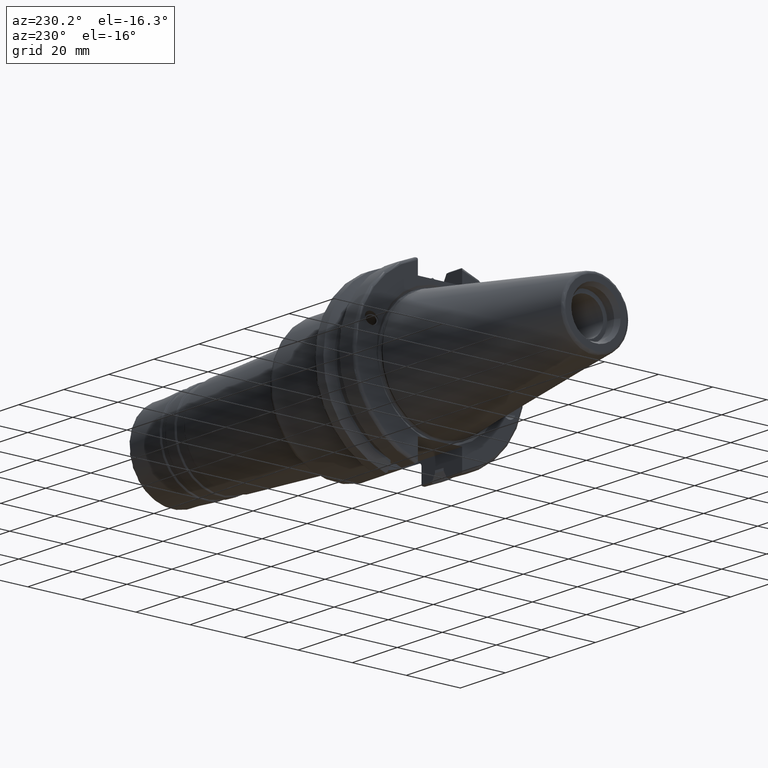
[diagram: clean part render]
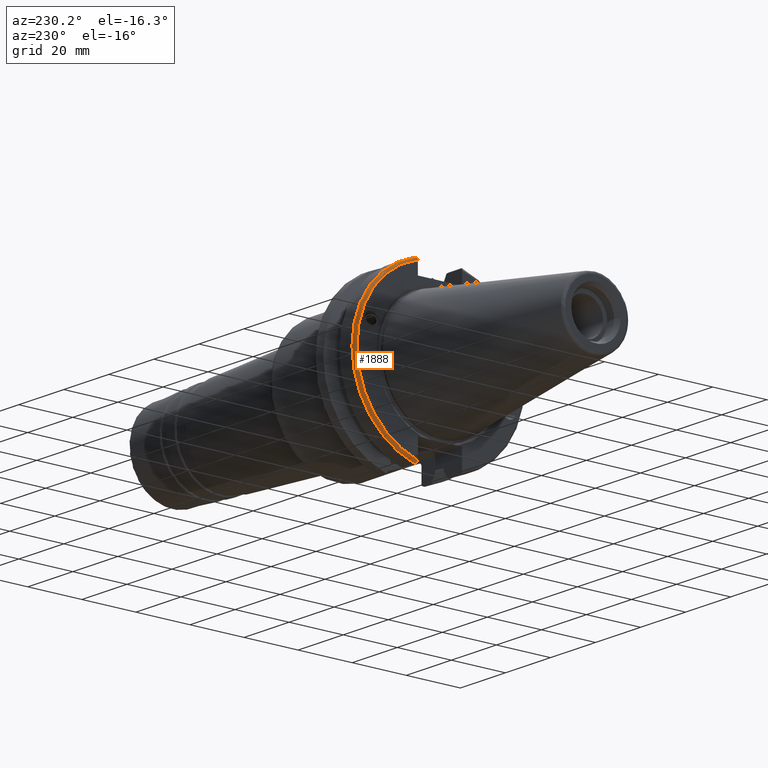
[diagram: same view with one face highlighted and labeled with its STEP entity id]
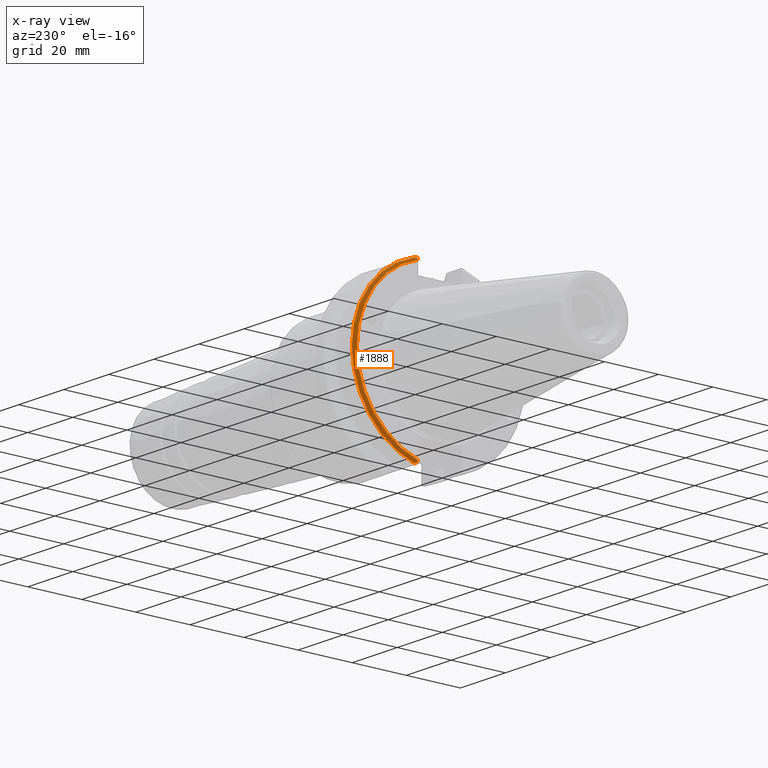
[diagram: x-ray of the same camera — body ghosted, the highlighted face saturated]
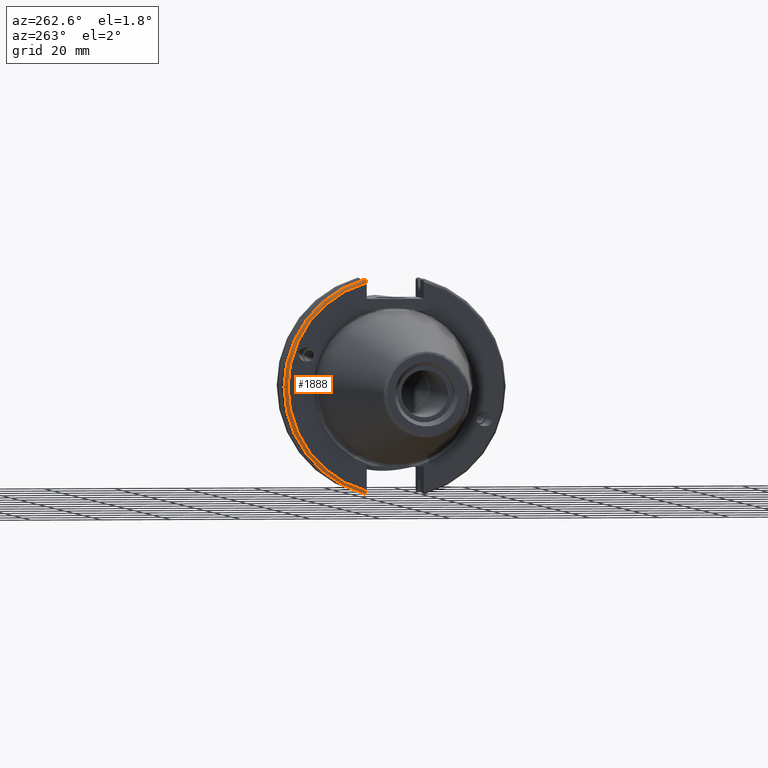
[diagram: same view with one face highlighted and labeled with its STEP entity id]
A machine part, auxiliary view. The second image highlights one B-rep face of the part: STEP entity #1888.
The next image is the same camera in x-ray: the body ghosted, the highlighted face saturated — about 0% of this face is hidden behind the body in this view.
A second angle (auxiliary view) of the same face is appended — the face is thin or edge-on in the first view.
In plain terms, the highlighted toroidal blend (fillet) surface has major radius 30.75 mm and minor (blend) radius 1 mm.
Its self-contained STEP definition (entity closure, byte-faithful):
#105=B_SPLINE_CURVE_WITH_KNOTS('',3,(#3509,#3510,#3511,#3512,#3513,#3514),
 .UNSPECIFIED.,.F.,.F.,(4,2,4),(0.452741795590859,0.491582306121234,0.505824815460518),
 .UNSPECIFIED.);
#114=B_SPLINE_CURVE_WITH_KNOTS('',3,(#3640,#3641,#3642,#3643,#3644,#3645,
#3646,#3647),.UNSPECIFIED.,.F.,.F.,(4,2,2,4),(-0.104180282751876,-0.0729784742461445,
-0.0343524753874976,0.),.UNSPECIFIED.);
#115=B_SPLINE_CURVE_WITH_KNOTS('',3,(#3651,#3652,#3653,#3654,#3655,#3656,
#3657,#3658),.UNSPECIFIED.,.F.,.F.,(4,2,2,4),(0.,0.0343524753874975,0.0729784742461445,
0.104180282751877),.UNSPECIFIED.);
#116=B_SPLINE_CURVE_WITH_KNOTS('',3,(#3659,#3660,#3661,#3662,#3663,#3664),
 .UNSPECIFIED.,.F.,.F.,(4,2,4),(0.0977210450333167,0.111963554372601,0.150804064902975),
 .UNSPECIFIED.);
#447=FACE_OUTER_BOUND('',#564,.T.);
#564=EDGE_LOOP('',(#1633,#1634,#1635,#1636,#1637,#1638));
#703=CIRCLE('',#2134,30.75);
#705=CIRCLE('',#2138,31.75);
#875=VERTEX_POINT('',#3506);
#876=VERTEX_POINT('',#3508);
#896=VERTEX_POINT('',#3623);
#901=VERTEX_POINT('',#3639);
#902=VERTEX_POINT('',#3648);
#903=VERTEX_POINT('',#3650);
#1128=EDGE_CURVE('',#876,#875,#105,.T.);
#1158=EDGE_CURVE('',#896,#876,#703,.T.);
#1165=EDGE_CURVE('',#875,#901,#114,.T.);
#1166=EDGE_CURVE('',#901,#902,#705,.T.);
#1167=EDGE_CURVE('',#902,#903,#115,.T.);
#1168=EDGE_CURVE('',#903,#896,#116,.T.);
#1633=ORIENTED_EDGE('',*,*,#1165,.T.);
#1634=ORIENTED_EDGE('',*,*,#1166,.T.);
#1635=ORIENTED_EDGE('',*,*,#1167,.T.);
#1636=ORIENTED_EDGE('',*,*,#1168,.T.);
#1637=ORIENTED_EDGE('',*,*,#1158,.T.);
#1638=ORIENTED_EDGE('',*,*,#1128,.T.);
#1814=TOROIDAL_SURFACE('',#2137,30.75,1.);
#1888=ADVANCED_FACE('',(#447),#1814,.T.);
#2134=AXIS2_PLACEMENT_3D('',#3624,#2647,#2648);
#2137=AXIS2_PLACEMENT_3D('',#3638,#2657,#2658);
#2138=AXIS2_PLACEMENT_3D('',#3649,#2659,#2660);
#2647=DIRECTION('center_axis',(1.,0.,0.));
#2648=DIRECTION('ref_axis',(0.,1.,1.60812264967664E-16));
#2657=DIRECTION('center_axis',(1.,0.,0.));
#2658=DIRECTION('ref_axis',(0.,0.,-1.));
#2659=DIRECTION('center_axis',(-1.,0.,0.));
#2660=DIRECTION('ref_axis',(0.,1.,1.60812264967664E-16));
#3506=CARTESIAN_POINT('',(1.14412772509028,8.19,30.1755016258903));
#3508=CARTESIAN_POINT('',(1.,8.19,29.6392712461019));
#3509=CARTESIAN_POINT('Ctrl Pts',(1.,8.19,29.6392712461019));
#3510=CARTESIAN_POINT('Ctrl Pts',(1.,8.19,29.7687396145364));
#3511=CARTESIAN_POINT('Ctrl Pts',(1.02951443291695,8.19,29.9212724384851));
#3512=CARTESIAN_POINT('Ctrl Pts',(1.09603565282437,8.19,30.0852355256475));
#3513=CARTESIAN_POINT('Ctrl Pts',(1.11818362718666,8.19,30.131014531546));
#3514=CARTESIAN_POINT('Ctrl Pts',(1.14412772509028,8.19,30.1755016258903));
#3623=CARTESIAN_POINT('',(1.,8.18999999999999,-29.6392712461019));
#3624=CARTESIAN_POINT('Origin',(1.,0.,0.));
#3638=CARTESIAN_POINT('Origin',(2.,0.,0.));
#3639=CARTESIAN_POINT('',(2.,8.67204822802685,30.5427254764662));
#3640=CARTESIAN_POINT('Ctrl Pts',(1.14412772509028,8.19,30.1755016258903));
#3641=CARTESIAN_POINT('Ctrl Pts',(1.19255369570113,8.2703682833078,30.2367261024977));
#3642=CARTESIAN_POINT('Ctrl Pts',(1.25732973376814,8.34909446036477,30.2966996242308));
#3643=CARTESIAN_POINT('Ctrl Pts',(1.41032758094931,8.48862804755883,30.4029961692546));
#3644=CARTESIAN_POINT('Ctrl Pts',(1.53155857052286,8.56482138642532,30.4610401774263));
#3645=CARTESIAN_POINT('Ctrl Pts',(1.75168295662254,8.6471881193939,30.5237870709558));
#3646=CARTESIAN_POINT('Ctrl Pts',(1.88549174870834,8.67204822802685,30.5427254764662));
#3647=CARTESIAN_POINT('Ctrl Pts',(2.,8.67204822802685,30.5427254764662));
#3648=CARTESIAN_POINT('',(2.,8.67204822802685,-30.5427254764662));
#3649=CARTESIAN_POINT('Origin',(2.,0.,0.));
#3650=CARTESIAN_POINT('',(1.14412772509028,8.19,-30.1755016258903));
#3651=CARTESIAN_POINT('Ctrl Pts',(2.,8.67204822802686,-30.5427254764662));
#3652=CARTESIAN_POINT('Ctrl Pts',(1.88549174870834,8.67204822802686,-30.5427254764662));
#3653=CARTESIAN_POINT('Ctrl Pts',(1.75168295662254,8.6471881193939,-30.5237870709558));
#3654=CARTESIAN_POINT('Ctrl Pts',(1.53155857052286,8.56482138642533,-30.4610401774263));
#3655=CARTESIAN_POINT('Ctrl Pts',(1.41032758094931,8.48862804755884,-30.4029961692546));
#3656=CARTESIAN_POINT('Ctrl Pts',(1.25732973376814,8.34909446036477,-30.2966996242308));
#3657=CARTESIAN_POINT('Ctrl Pts',(1.19255369570114,8.27036828330781,-30.2367261024977));
#3658=CARTESIAN_POINT('Ctrl Pts',(1.14412772509028,8.19,-30.1755016258903));
#3659=CARTESIAN_POINT('Ctrl Pts',(1.14412772509028,8.19,-30.1755016258903));
#3660=CARTESIAN_POINT('Ctrl Pts',(1.11818362718666,8.19,-30.131014531546));
#3661=CARTESIAN_POINT('Ctrl Pts',(1.09603565282437,8.19,-30.0852355256475));
#3662=CARTESIAN_POINT('Ctrl Pts',(1.02951443291695,8.19,-29.9212724384851));
#3663=CARTESIAN_POINT('Ctrl Pts',(1.,8.19,-29.7687396145364));
#3664=CARTESIAN_POINT('Ctrl Pts',(1.,8.19,-29.6392712461019));